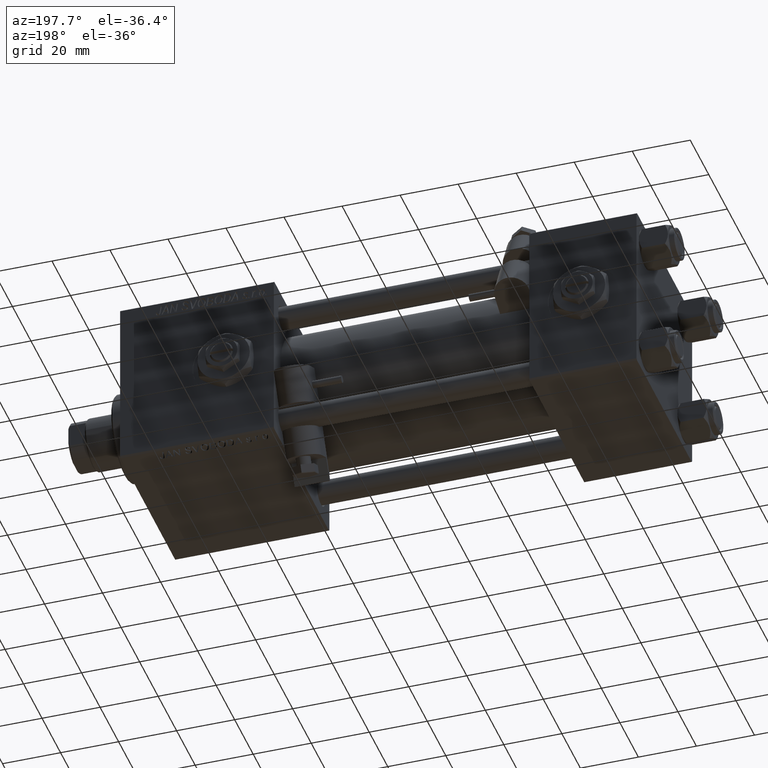
[diagram: clean part render]
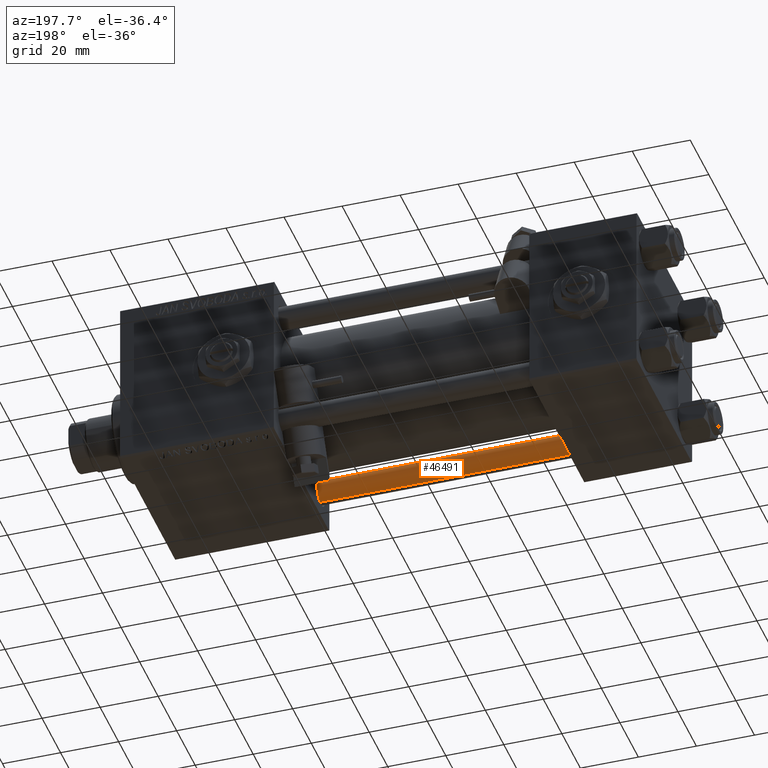
[diagram: same view with one face highlighted and labeled with its STEP entity id]
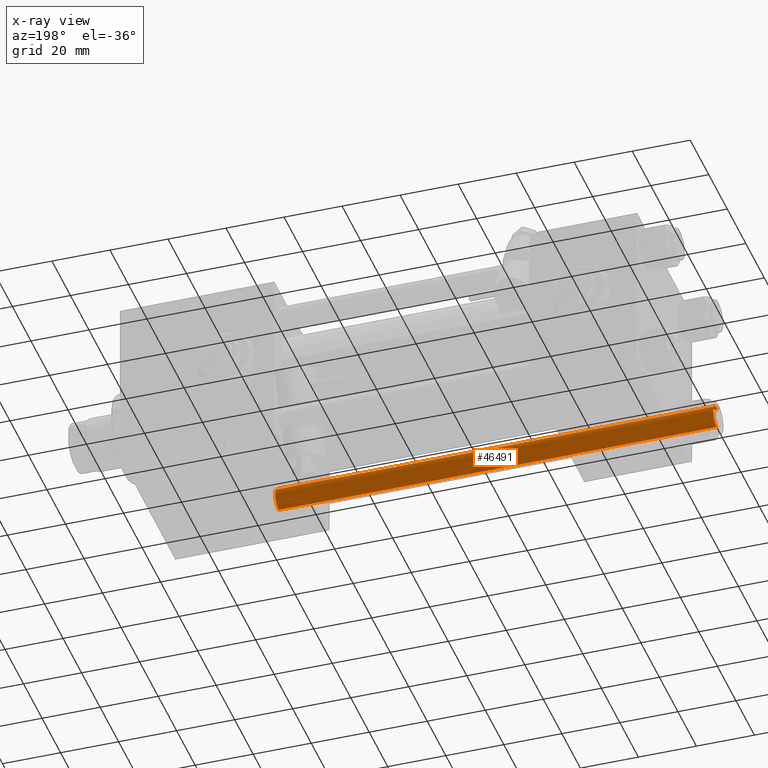
[diagram: x-ray of the same camera — body ghosted, the highlighted face saturated]
A machine part, auxiliary view. The second image highlights one B-rep face of the part: STEP entity #46491.
The next image is the same camera in x-ray: the body ghosted, the highlighted face saturated — about 1% of this face is hidden behind the body in this view.
In plain terms, the highlighted cylindrical surface (edge-blend (fillet) strip) has radius 4 mm, axis along (-1, -0, -0).
Its self-contained STEP definition (entity closure, byte-faithful):
#2070 = CARTESIAN_POINT ( 'NONE',  ( 0.000000000000000000, 0.000000000000000000, 152.0000000000000000 ) ) ;
#4532 = CARTESIAN_POINT ( 'NONE',  ( -4.000000000000000000, 0.000000000000000000, 0.5000000000000281997 ) ) ;
#4587 = VECTOR ( 'NONE', #50132, 1000.000000000000000 ) ;
#4816 = CARTESIAN_POINT ( 'NONE',  ( -4.000000000000000000, 0.000000000000000000, 151.5000000000000284 ) ) ;
#5296 = DIRECTION ( 'NONE',  ( -0.000000000000000000, -0.000000000000000000, -1.000000000000000000 ) ) ;
#6354 = EDGE_CURVE ( 'NONE', #42867, #41093, #33680, .T. ) ;
#6393 = DIRECTION ( 'NONE',  ( -0.000000000000000000, -0.000000000000000000, -1.000000000000000000 ) ) ;
#7610 = EDGE_CURVE ( 'NONE', #43743, #10435, #50582, .T. ) ;
#8885 = CARTESIAN_POINT ( 'NONE',  ( 4.000000000000000000, 4.898587196589412829E-16, 151.5000000000000284 ) ) ;
#10429 = FACE_OUTER_BOUND ( 'NONE', #12083, .T. ) ;
#10435 = VERTEX_POINT ( 'NONE', #37445 ) ;
#11485 = DIRECTION ( 'NONE',  ( 1.000000000000000000, 0.000000000000000000, 0.000000000000000000 ) ) ;
#12083 = EDGE_LOOP ( 'NONE', ( #35525, #35647, #19269, #34450 ) ) ;
#13424 = DIRECTION ( 'NONE',  ( -1.000000000000000000, 0.000000000000000000, 0.000000000000000000 ) ) ;
#14163 = EDGE_CURVE ( 'NONE', #43743, #42867, #45189, .T. ) ;
#17419 = CARTESIAN_POINT ( 'NONE',  ( 0.000000000000000000, 0.000000000000000000, 0.5000000000000281997 ) ) ;
#19269 = ORIENTED_EDGE ( 'NONE', *, *, #6354, .T. ) ;
#20706 = CARTESIAN_POINT ( 'NONE',  ( 4.000000000000000000, 4.898587196589412829E-16, 152.0000000000000000 ) ) ;
#20925 = EDGE_CURVE ( 'NONE', #41093, #10435, #35899, .T. ) ;
#26240 = AXIS2_PLACEMENT_3D ( 'NONE', #48423, #43842, #11485 ) ;
#33680 = LINE ( 'NONE', #33937, #4587 ) ;
#33937 = CARTESIAN_POINT ( 'NONE',  ( -4.000000000000000000, 0.000000000000000000, 152.0000000000000000 ) ) ;
#34367 = DIRECTION ( 'NONE',  ( -0.000000000000000000, -0.000000000000000000, 1.000000000000000000 ) ) ;
#34450 = ORIENTED_EDGE ( 'NONE', *, *, #20925, .T. ) ;
#35525 = ORIENTED_EDGE ( 'NONE', *, *, #7610, .F. ) ;
#35647 = ORIENTED_EDGE ( 'NONE', *, *, #14163, .T. ) ;
#35899 = CIRCLE ( 'NONE', #47066, 4.000000000000000000 ) ;
#37445 = CARTESIAN_POINT ( 'NONE',  ( 4.000000000000000000, 4.898587196589412829E-16, 0.5000000000000281997 ) ) ;
#38584 = AXIS2_PLACEMENT_3D ( 'NONE', #2070, #6393, #13424 ) ;
#39287 = CYLINDRICAL_SURFACE ( 'NONE', #38584, 4.000000000000000000 ) ;
#41093 = VERTEX_POINT ( 'NONE', #4532 ) ;
#42867 = VERTEX_POINT ( 'NONE', #4816 ) ;
#43743 = VERTEX_POINT ( 'NONE', #8885 ) ;
#43842 = DIRECTION ( 'NONE',  ( 0.000000000000000000, 0.000000000000000000, -1.000000000000000000 ) ) ;
#45189 = CIRCLE ( 'NONE', #26240, 4.000000000000000000 ) ;
#46491 = ADVANCED_FACE ( 'NONE', ( #10429 ), #39287, .T. ) ;
#47066 = AXIS2_PLACEMENT_3D ( 'NONE', #17419, #34367, #51079 ) ;
#48423 = CARTESIAN_POINT ( 'NONE',  ( 0.000000000000000000, 0.000000000000000000, 151.5000000000000284 ) ) ;
#49381 = VECTOR ( 'NONE', #5296, 1000.000000000000000 ) ;
#50132 = DIRECTION ( 'NONE',  ( -0.000000000000000000, -0.000000000000000000, -1.000000000000000000 ) ) ;
#50582 = LINE ( 'NONE', #20706, #49381 ) ;
#51079 = DIRECTION ( 'NONE',  ( 1.000000000000000000, 0.000000000000000000, 0.000000000000000000 ) ) ;